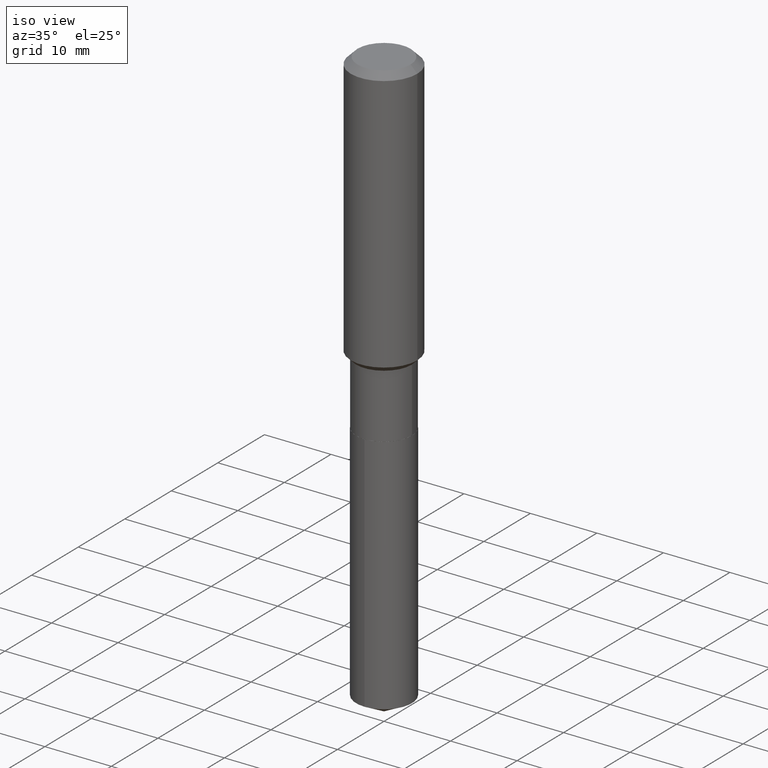
[diagram: clean part render]
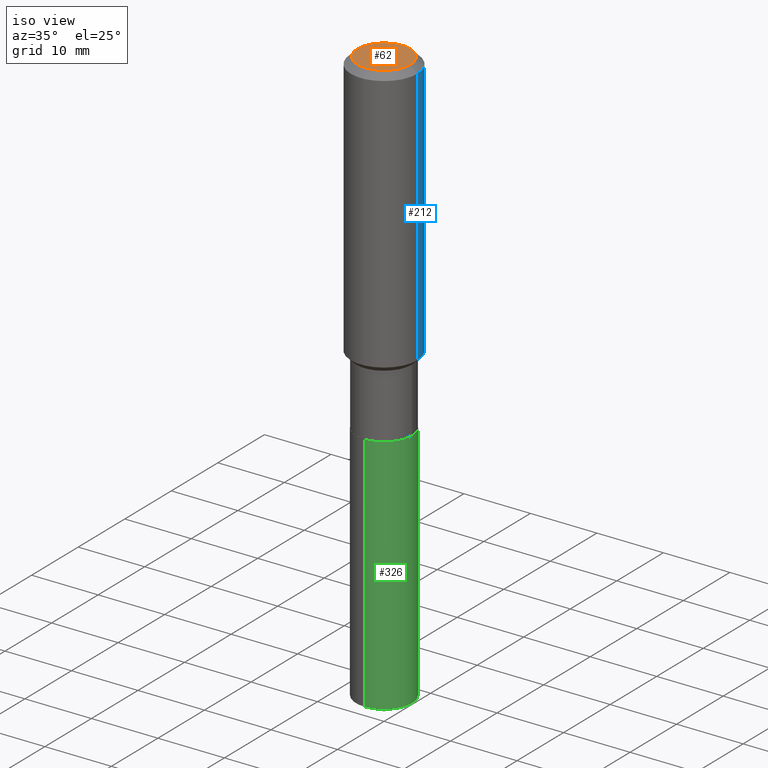
[diagram: same view with three faces highlighted in distinct colors, each labeled with its STEP entity id]
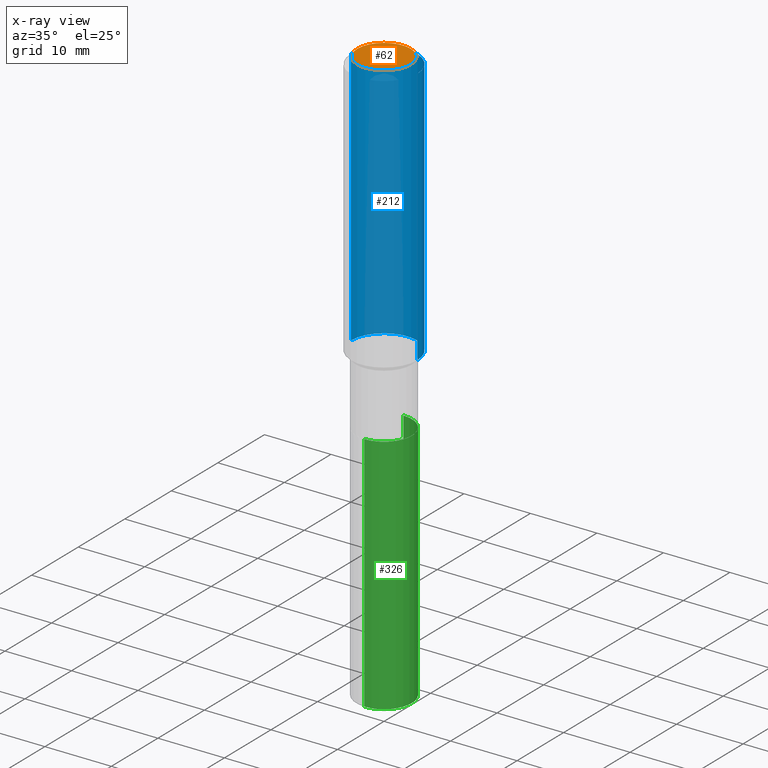
[diagram: x-ray of the same camera — body ghosted, the three highlighted faces saturated]
A machine part, iso view with three faces highlighted in distinct colors.
The next image is the same camera in x-ray (body ghosted, the three faces saturated) — at least one of them is partly hidden behind the body in this view.
Their STEP definitions:

[orange] entity #62 — the highlighted planar face has unit normal (0, -0, -1).
#17 = DIRECTION ( 'NONE',  ( -1.000000000000000000, 6.982962677686265922E-15, -4.876176775795935793E-29 ) ) ;
#26 = EDGE_CURVE ( 'NONE', #301, #282, #356, .T. ) ;
#37 = AXIS2_PLACEMENT_3D ( 'NONE', #453, #353, #17 ) ;
#53 = DIRECTION ( 'NONE',  ( -2.445468806185136597E-29, 3.491481338843145583E-15, 1.000000000000000000 ) ) ;
#62 = ADVANCED_FACE ( 'NONE', ( #439 ), #121, .F. ) ;
#63 = AXIS2_PLACEMENT_3D ( 'NONE', #239, #383, #161 ) ;
#98 = EDGE_LOOP ( 'NONE', ( #126, #490 ) ) ;
#114 = EDGE_CURVE ( 'NONE', #282, #301, #274, .T. ) ;
#121 = PLANE ( 'NONE',  #37 ) ;
#123 = AXIS2_PLACEMENT_3D ( 'NONE', #376, #53, #275 ) ;
#126 = ORIENTED_EDGE ( 'NONE', *, *, #26, .T. ) ;
#161 = DIRECTION ( 'NONE',  ( 1.000000000000000000, -6.982962677686265922E-15, 4.876223630392693006E-29 ) ) ;
#207 = CARTESIAN_POINT ( 'NONE',  ( -0.1574800000000000089, 1.168406772637159815E-15, 3.855188123707939751E-18 ) ) ;
#239 = CARTESIAN_POINT ( 'NONE',  ( -9.427742298522567634E-47, 1.346031739168368355E-32, 3.855188123715870730E-18 ) ) ;
#274 = CIRCLE ( 'NONE', #63, 0.1574800000000000089 ) ;
#275 = DIRECTION ( 'NONE',  ( 1.000000000000000000, -6.982962677686265922E-15, 4.876223630392693006E-29 ) ) ;
#282 = VERTEX_POINT ( 'NONE', #319 ) ;
#301 = VERTEX_POINT ( 'NONE', #207 ) ;
#319 = CARTESIAN_POINT ( 'NONE',  ( 0.1574800000000000089, -1.284169937930321386E-15, 3.855188123724205385E-18 ) ) ;
#353 = DIRECTION ( 'NONE',  ( 2.438088387897960049E-29, -3.491481338843145188E-15, -1.000000000000000000 ) ) ;
#356 = CIRCLE ( 'NONE', #123, 0.1574800000000000089 ) ;
#376 = CARTESIAN_POINT ( 'NONE',  ( -9.427742298522567634E-47, 1.346031739168368355E-32, 3.855188123715870730E-18 ) ) ;
#383 = DIRECTION ( 'NONE',  ( -2.445468806185136597E-29, 3.491481338843145583E-15, 1.000000000000000000 ) ) ;
#439 = FACE_OUTER_BOUND ( 'NONE', #98, .T. ) ;
#453 = CARTESIAN_POINT ( 'NONE',  ( -4.713871149261283817E-47, 6.730158695841841775E-33, 1.927594061857935365E-18 ) ) ;
#490 = ORIENTED_EDGE ( 'NONE', *, *, #114, .T. ) ;

[blue] entity #212 — the highlighted cylindrical surface (partial cylindrical patch) has radius 5 mm, axis along (-0, 0, 1).
#20 = CARTESIAN_POINT ( 'NONE',  ( -0.1968500000000001082, 1.398703375343757985E-15, -9.682923725166787881E-30 ) ) ;
#31 = CIRCLE ( 'NONE', #141, 0.1968500000000002192 ) ;
#35 = EDGE_CURVE ( 'NONE', #371, #314, #283, .T. ) ;
#36 = EDGE_LOOP ( 'NONE', ( #226, #341, #265, #184 ) ) ;
#38 = CARTESIAN_POINT ( 'NONE',  ( 0.1968500000000000527, -1.512055823412797583E-15, -0.03937000000000027283 ) ) ;
#39 = CARTESIAN_POINT ( 'NONE',  ( 0.000000000000000000, 0.000000000000000000, 0.000000000000000000 ) ) ;
#65 = DIRECTION ( 'NONE',  ( 1.000000000000000000, -6.982962677686266711E-15, 4.876176775795935793E-29 ) ) ;
#66 = EDGE_CURVE ( 'NONE', #219, #230, #31, .T. ) ;
#79 = DIRECTION ( 'NONE',  ( 1.000000000000000000, -6.982962677686266711E-15, 0.000000000000000000 ) ) ;
#82 = DIRECTION ( 'NONE',  ( 1.000000000000000000, -6.982962677686265922E-15, 0.000000000000000000 ) ) ;
#96 = AXIS2_PLACEMENT_3D ( 'NONE', #150, #403, #79 ) ;
#132 = FACE_OUTER_BOUND ( 'NONE', #36, .T. ) ;
#141 = AXIS2_PLACEMENT_3D ( 'NONE', #313, #166, #82 ) ;
#150 = CARTESIAN_POINT ( 'NONE',  ( 9.627810689950950651E-31, -1.374596203102555808E-16, -0.03937000000000027283 ) ) ;
#166 = DIRECTION ( 'NONE',  ( -2.445468806185136597E-29, 3.491481338843145583E-15, 1.000000000000000000 ) ) ;
#182 = EDGE_CURVE ( 'NONE', #230, #314, #349, .T. ) ;
#184 = ORIENTED_EDGE ( 'NONE', *, *, #400, .F. ) ;
#212 = ADVANCED_FACE ( 'NONE', ( #132 ), #323, .T. ) ;
#219 = VERTEX_POINT ( 'NONE', #255 ) ;
#226 = ORIENTED_EDGE ( 'NONE', *, *, #66, .T. ) ;
#228 = LINE ( 'NONE', #258, #368 ) ;
#230 = VERTEX_POINT ( 'NONE', #288 ) ;
#255 = CARTESIAN_POINT ( 'NONE',  ( 0.1968500000000002192, -6.864601460299502968E-15, -1.572399999999999576 ) ) ;
#258 = CARTESIAN_POINT ( 'NONE',  ( 0.1968500000000001082, -1.374596203102542397E-15, 9.598753983154305062E-30 ) ) ;
#265 = ORIENTED_EDGE ( 'NONE', *, *, #35, .F. ) ;
#272 = CARTESIAN_POINT ( 'NONE',  ( -0.1968500000000000527, -1.415029063409849697E-15, -0.03937000000000027283 ) ) ;
#283 = CIRCLE ( 'NONE', #96, 0.1968500000000000527 ) ;
#288 = CARTESIAN_POINT ( 'NONE',  ( -0.1968500000000002192, -4.091301881853201994E-15, -1.572399999999999576 ) ) ;
#313 = CARTESIAN_POINT ( 'NONE',  ( 3.845255150845508133E-29, -5.490005257196960571E-15, -1.572399999999999576 ) ) ;
#314 = VERTEX_POINT ( 'NONE', #272 ) ;
#317 = AXIS2_PLACEMENT_3D ( 'NONE', #39, #447, #65 ) ;
#323 = CYLINDRICAL_SURFACE ( 'NONE', #317, 0.1968500000000001082 ) ;
#341 = ORIENTED_EDGE ( 'NONE', *, *, #182, .T. ) ;
#349 = LINE ( 'NONE', #20, #440 ) ;
#368 = VECTOR ( 'NONE', #405, 39.37007874015748143 ) ;
#371 = VERTEX_POINT ( 'NONE', #38 ) ;
#400 = EDGE_CURVE ( 'NONE', #219, #371, #228, .T. ) ;
#403 = DIRECTION ( 'NONE',  ( -2.445468806185136597E-29, 3.491481338843145583E-15, 1.000000000000000000 ) ) ;
#405 = DIRECTION ( 'NONE',  ( -2.445468806185136877E-29, 3.491481338843145188E-15, 1.000000000000000000 ) ) ;
#440 = VECTOR ( 'NONE', #486, 39.37007874015748143 ) ;
#447 = DIRECTION ( 'NONE',  ( -2.445468806185136597E-29, 3.491481338843145583E-15, 1.000000000000000000 ) ) ;
#486 = DIRECTION ( 'NONE',  ( -2.445468806185136877E-29, 3.491481338843145188E-15, 1.000000000000000000 ) ) ;

[green] entity #326 — the highlighted cylindrical surface (edge-blend (fillet) strip) has radius 4.1999 mm, axis along (-0, 0, 1).
#2 = AXIS2_PLACEMENT_3D ( 'NONE', #329, #45, #189 ) ;
#40 = EDGE_LOOP ( 'NONE', ( #444, #143, #76, #202 ) ) ;
#43 = DIRECTION ( 'NONE',  ( -2.445567022801007546E-29, 3.491340687059075982E-15, 1.000000000000000000 ) ) ;
#45 = DIRECTION ( 'NONE',  ( -2.445567022801007266E-29, 3.491340687059075982E-15, 1.000000000000000000 ) ) ;
#70 = LINE ( 'NONE', #223, #441 ) ;
#76 = ORIENTED_EDGE ( 'NONE', *, *, #227, .F. ) ;
#94 = CARTESIAN_POINT ( 'NONE',  ( -1.154632878755340651E-15, -0.1653500000000119041, -3.415981845474774126 ) ) ;
#116 = CIRCLE ( 'NONE', #165, 0.1653499999999999970 ) ;
#143 = ORIENTED_EDGE ( 'NONE', *, *, #445, .T. ) ;
#148 = DIRECTION ( 'NONE',  ( -2.445567022801007266E-29, 3.491340687059075982E-15, 1.000000000000000000 ) ) ;
#165 = AXIS2_PLACEMENT_3D ( 'NONE', #392, #484, #214 ) ;
#177 = CARTESIAN_POINT ( 'NONE',  ( -1.154632878755375361E-15, -0.1653500000000069081, -1.984199999999999076 ) ) ;
#183 = FACE_OUTER_BOUND ( 'NONE', #40, .T. ) ;
#189 = DIRECTION ( 'NONE',  ( -6.982962677686265133E-15, -1.000000000000000000, 3.304321734096478263E-15 ) ) ;
#190 = CARTESIAN_POINT ( 'NONE',  ( -1.154632878755375361E-15, -0.1653500000000069081, -1.984199999999999076 ) ) ;
#202 = ORIENTED_EDGE ( 'NONE', *, *, #332, .F. ) ;
#214 = DIRECTION ( 'NONE',  ( -6.982962677686265133E-15, -1.000000000000000000, 3.304321734096478263E-15 ) ) ;
#222 = DIRECTION ( 'NONE',  ( -6.982962677686265133E-15, -1.000000000000000000, 3.304321734096478263E-15 ) ) ;
#223 = CARTESIAN_POINT ( 'NONE',  ( 1.174882413579373756E-15, 0.1653499999999930581, -1.984200000000000186 ) ) ;
#227 = EDGE_CURVE ( 'NONE', #254, #259, #116, .T. ) ;
#254 = VERTEX_POINT ( 'NONE', #177 ) ;
#259 = VERTEX_POINT ( 'NONE', #327 ) ;
#262 = VERTEX_POINT ( 'NONE', #94 ) ;
#266 = CIRCLE ( 'NONE', #277, 0.1653499999999999970 ) ;
#277 = AXIS2_PLACEMENT_3D ( 'NONE', #489, #148, #222 ) ;
#289 = VECTOR ( 'NONE', #463, 39.37007874015748143 ) ;
#326 = ADVANCED_FACE ( 'NONE', ( #183 ), #366, .T. ) ;
#327 = CARTESIAN_POINT ( 'NONE',  ( 1.174882413579409058E-15, 0.1653499999999930581, -1.984200000000000186 ) ) ;
#329 = CARTESIAN_POINT ( 'NONE',  ( 4.852299205232546721E-29, -6.927797272532567708E-15, -1.984199999999999520 ) ) ;
#332 = EDGE_CURVE ( 'NONE', #262, #254, #379, .T. ) ;
#340 = EDGE_CURVE ( 'NONE', #262, #415, #266, .T. ) ;
#366 = CYLINDRICAL_SURFACE ( 'NONE', #2, 0.1653499999999999970 ) ;
#369 = CARTESIAN_POINT ( 'NONE',  ( 1.174882413579409058E-15, 0.1653499999999880621, -3.415981845474775458 ) ) ;
#379 = LINE ( 'NONE', #190, #289 ) ;
#392 = CARTESIAN_POINT ( 'NONE',  ( 4.852299205232546721E-29, -6.927797272532567708E-15, -1.984199999999999520 ) ) ;
#415 = VERTEX_POINT ( 'NONE', #369 ) ;
#441 = VECTOR ( 'NONE', #43, 39.37007874015748143 ) ;
#444 = ORIENTED_EDGE ( 'NONE', *, *, #340, .T. ) ;
#445 = EDGE_CURVE ( 'NONE', #415, #259, #70, .T. ) ;
#463 = DIRECTION ( 'NONE',  ( -2.445567022801007546E-29, 3.491340687059075982E-15, 1.000000000000000000 ) ) ;
#484 = DIRECTION ( 'NONE',  ( -2.445567022801007266E-29, 3.491340687059075982E-15, 1.000000000000000000 ) ) ;
#489 = CARTESIAN_POINT ( 'NONE',  ( 8.353817670370826055E-29, -1.192663548463118080E-14, -3.415981845474774570 ) ) ;